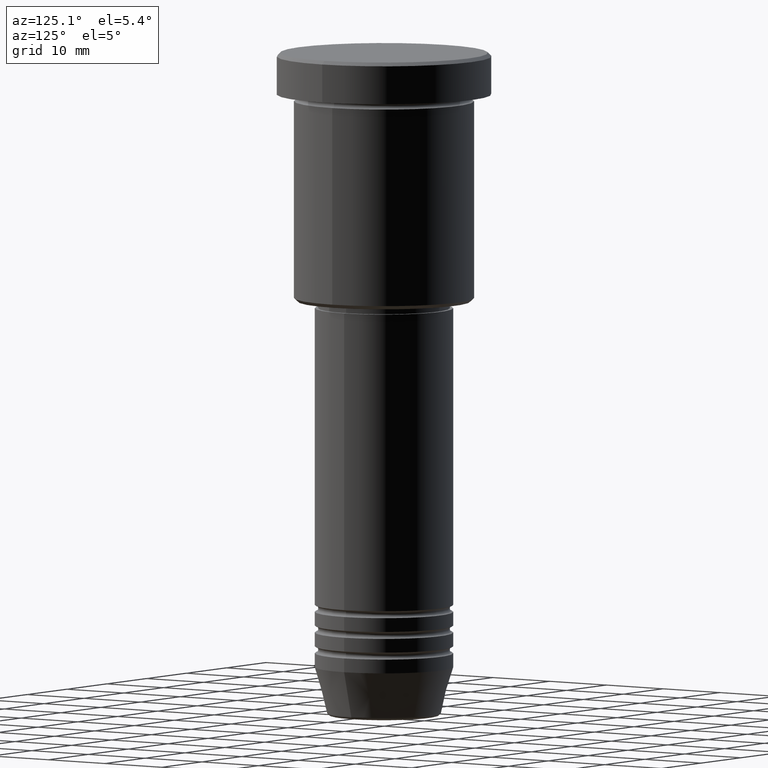
[diagram: clean part render]
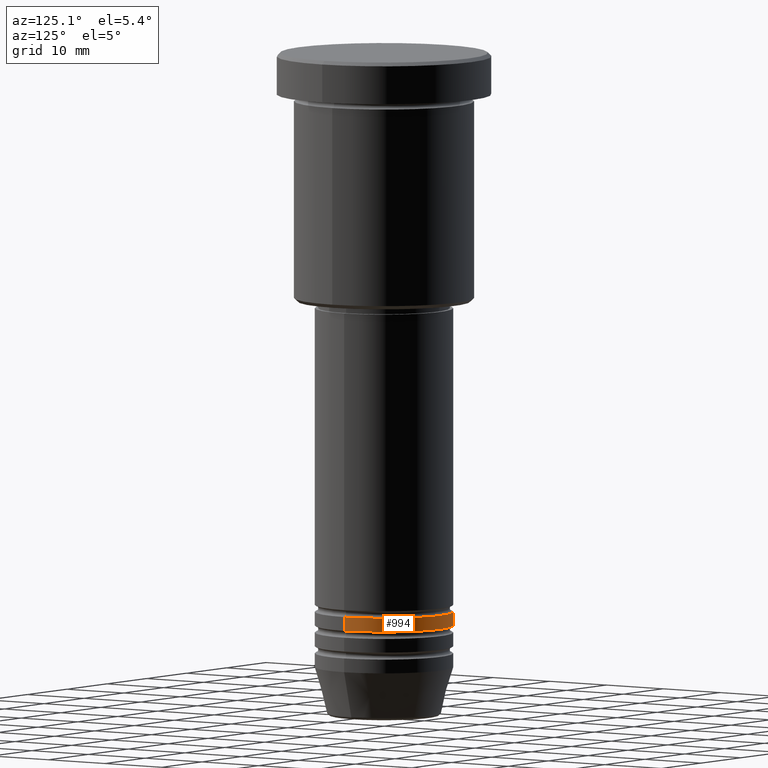
[diagram: same view with one face highlighted and labeled with its STEP entity id]
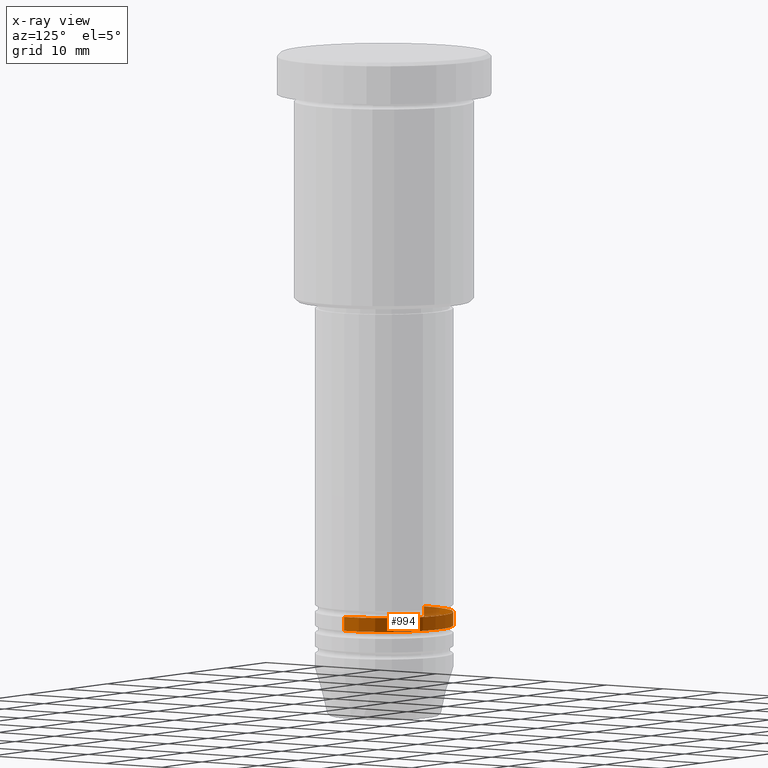
[diagram: x-ray of the same camera — body ghosted, the highlighted face saturated]
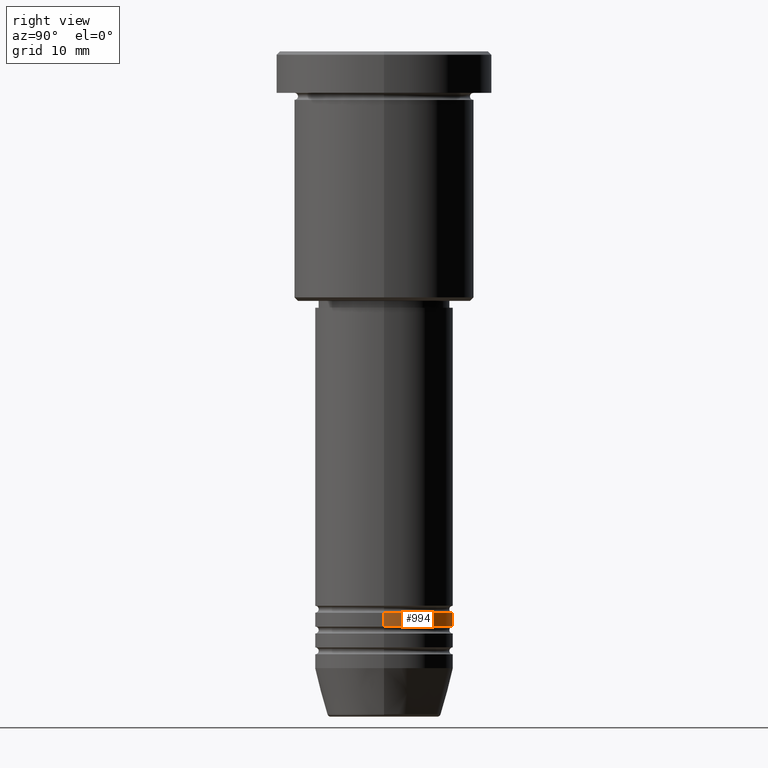
[diagram: same view with one face highlighted and labeled with its STEP entity id]
A machine part, auxiliary view. The second image highlights one B-rep face of the part: STEP entity #994.
The next image is the same camera in x-ray: the body ghosted, the highlighted face saturated — about 9% of this face is hidden behind the body in this view.
A second angle (right view) of the same face is appended — the face is thin or edge-on in the first view.
In plain terms, the highlighted cylindrical surface (partial cylindrical patch) has radius 10 mm, axis along (-0, -0, 1).
Its self-contained STEP definition (entity closure, byte-faithful):
#1 = CIRCLE ( 'NONE', #883, 10.00000000000000000 ) ;
#23 = LINE ( 'NONE', #497, #540 ) ;
#24 = LINE ( 'NONE', #1045, #1116 ) ;
#82 = VERTEX_POINT ( 'NONE', #378 ) ;
#107 = EDGE_CURVE ( 'NONE', #566, #116, #23, .T. ) ;
#110 = AXIS2_PLACEMENT_3D ( 'NONE', #914, #543, #903 ) ;
#116 = VERTEX_POINT ( 'NONE', #681 ) ;
#200 = AXIS2_PLACEMENT_3D ( 'NONE', #361, #350, #902 ) ;
#217 = ORIENTED_EDGE ( 'NONE', *, *, #107, .T. ) ;
#266 = EDGE_CURVE ( 'NONE', #82, #566, #1, .T. ) ;
#350 = DIRECTION ( 'NONE',  ( -0.000000000000000000, -0.000000000000000000, 1.000000000000000000 ) ) ;
#361 = CARTESIAN_POINT ( 'NONE',  ( 0.000000000000000000, 0.000000000000000000, -80.99999999999997158 ) ) ;
#378 = CARTESIAN_POINT ( 'NONE',  ( 10.00000000000000000, 0.000000000000000000, -82.99999999999997158 ) ) ;
#386 = DIRECTION ( 'NONE',  ( -0.000000000000000000, -0.000000000000000000, 1.000000000000000000 ) ) ;
#399 = EDGE_CURVE ( 'NONE', #1001, #116, #934, .T. ) ;
#443 = ORIENTED_EDGE ( 'NONE', *, *, #266, .T. ) ;
#497 = CARTESIAN_POINT ( 'NONE',  ( -10.00000000000000000, 1.224646799147353256E-15, 0.000000000000000000 ) ) ;
#519 = CARTESIAN_POINT ( 'NONE',  ( 0.000000000000000000, 0.000000000000000000, -82.99999999999997158 ) ) ;
#531 = ORIENTED_EDGE ( 'NONE', *, *, #399, .F. ) ;
#540 = VECTOR ( 'NONE', #1120, 1000.000000000000000 ) ;
#543 = DIRECTION ( 'NONE',  ( -0.000000000000000000, -0.000000000000000000, 1.000000000000000000 ) ) ;
#546 = ORIENTED_EDGE ( 'NONE', *, *, #678, .F. ) ;
#566 = VERTEX_POINT ( 'NONE', #967 ) ;
#678 = EDGE_CURVE ( 'NONE', #82, #1001, #24, .T. ) ;
#681 = CARTESIAN_POINT ( 'NONE',  ( -10.00000000000000000, 1.224646799147353256E-15, -80.99999999999997158 ) ) ;
#741 = CARTESIAN_POINT ( 'NONE',  ( 10.00000000000000000, 0.000000000000000000, -80.99999999999997158 ) ) ;
#780 = DIRECTION ( 'NONE',  ( -0.000000000000000000, -0.000000000000000000, 1.000000000000000000 ) ) ;
#831 = CYLINDRICAL_SURFACE ( 'NONE', #110, 10.00000000000000000 ) ;
#883 = AXIS2_PLACEMENT_3D ( 'NONE', #519, #780, #1067 ) ;
#902 = DIRECTION ( 'NONE',  ( 1.000000000000000000, 0.000000000000000000, 0.000000000000000000 ) ) ;
#903 = DIRECTION ( 'NONE',  ( 1.000000000000000000, 0.000000000000000000, 0.000000000000000000 ) ) ;
#914 = CARTESIAN_POINT ( 'NONE',  ( 0.000000000000000000, 0.000000000000000000, 0.000000000000000000 ) ) ;
#934 = CIRCLE ( 'NONE', #200, 10.00000000000000000 ) ;
#967 = CARTESIAN_POINT ( 'NONE',  ( -10.00000000000000000, 1.224646799147353256E-15, -82.99999999999997158 ) ) ;
#994 = ADVANCED_FACE ( 'NONE', ( #1092 ), #831, .T. ) ;
#1001 = VERTEX_POINT ( 'NONE', #741 ) ;
#1032 = EDGE_LOOP ( 'NONE', ( #443, #217, #531, #546 ) ) ;
#1045 = CARTESIAN_POINT ( 'NONE',  ( 10.00000000000000000, 0.000000000000000000, 0.000000000000000000 ) ) ;
#1067 = DIRECTION ( 'NONE',  ( 1.000000000000000000, 0.000000000000000000, 0.000000000000000000 ) ) ;
#1092 = FACE_OUTER_BOUND ( 'NONE', #1032, .T. ) ;
#1116 = VECTOR ( 'NONE', #386, 1000.000000000000000 ) ;
#1120 = DIRECTION ( 'NONE',  ( -0.000000000000000000, -0.000000000000000000, 1.000000000000000000 ) ) ;